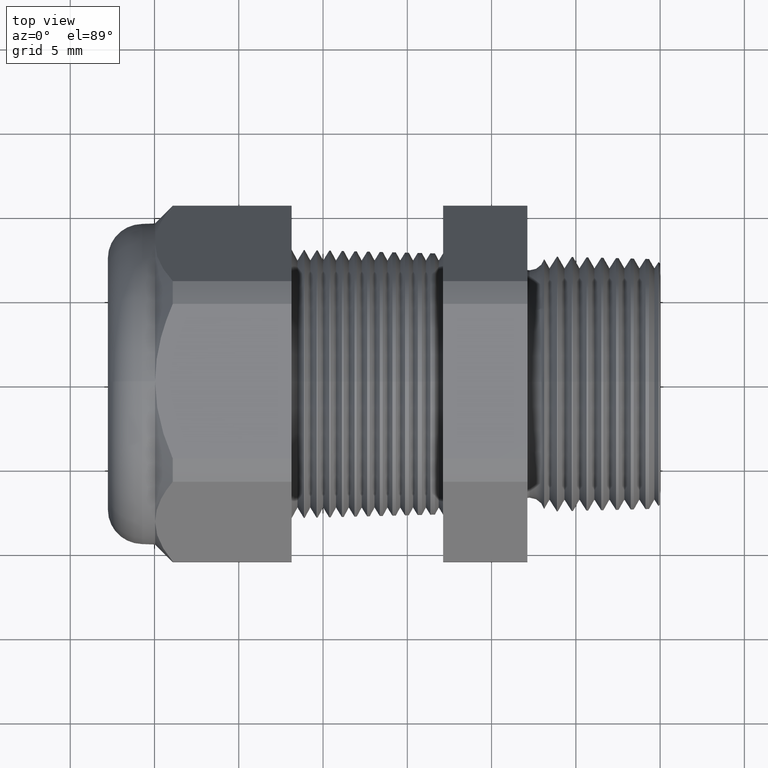
[diagram: clean part render]
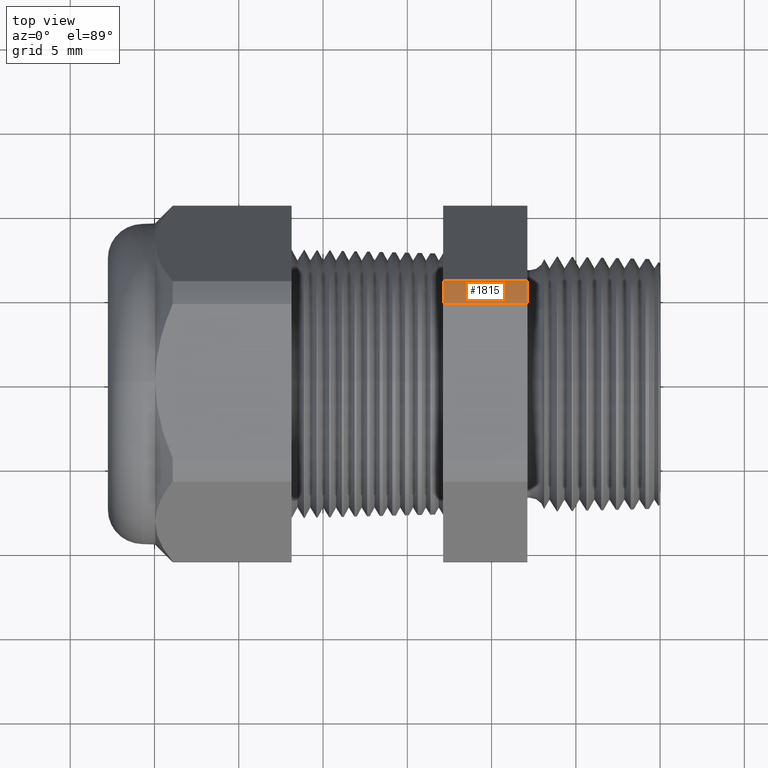
[diagram: same view with one face highlighted and labeled with its STEP entity id]
A machine part, top view. The second image highlights one B-rep face of the part: STEP entity #1815.
In plain terms, the highlighted cylindrical surface (partial cylindrical patch) has radius 10.5727 mm, axis along (-1, 0, 0).
Its self-contained STEP definition (entity closure, byte-faithful):
#1654 = VERTEX_POINT ( 'NONE', #3881 ) ;
#1656 = EDGE_CURVE ( 'NONE', #1654, #1657, #3880, .T. ) ;
#1657 = VERTEX_POINT ( 'NONE', #3875 ) ;
#1815 = ADVANCED_FACE ( 'NONE', ( #4179 ), #4178, .T. ) ;
#1816 = EDGE_LOOP ( 'NONE', ( #1817, #1818, #1819, #1822 ) ) ;
#1817 = ORIENTED_EDGE ( 'NONE', *, *, #1839, .F. ) ;
#1818 = ORIENTED_EDGE ( 'NONE', *, *, #1656, .F. ) ;
#1819 = ORIENTED_EDGE ( 'NONE', *, *, #1820, .T. ) ;
#1820 = EDGE_CURVE ( 'NONE', #1654, #1821, #4177, .T. ) ;
#1821 = VERTEX_POINT ( 'NONE', #4169 ) ;
#1822 = ORIENTED_EDGE ( 'NONE', *, *, #1823, .F. ) ;
#1823 = EDGE_CURVE ( 'NONE', #1840, #1821, #4234, .T. ) ;
#1839 = EDGE_CURVE ( 'NONE', #1657, #1840, #4206, .T. ) ;
#1840 = VERTEX_POINT ( 'NONE', #4202 ) ;
#3875 = CARTESIAN_POINT ( 'NONE',  ( -0.3100000000000000000, 0.1806628420566887000, 0.3749999999999999400 ) ) ;
#3876 = DIRECTION ( 'NONE',  ( 0.0000000000000000000, 0.0000000000000000000, -1.000000000000000000 ) ) ;
#3877 = DIRECTION ( 'NONE',  ( 1.000000000000000000, 0.0000000000000000000, 0.0000000000000000000 ) ) ;
#3878 = CARTESIAN_POINT ( 'NONE',  ( -0.3100000000000000000, 0.0000000000000000000, 0.0000000000000000000 ) ) ;
#3879 = AXIS2_PLACEMENT_3D ( 'NONE', #3878, #3877, #3876 ) ;
#3880 = CIRCLE ( 'NONE', #3879, 0.4162499999999999500 ) ;
#3881 = CARTESIAN_POINT ( 'NONE',  ( -0.3100000000000000000, 0.2344281053908206000, 0.3439586107409877100 ) ) ;
#4169 = CARTESIAN_POINT ( 'NONE',  ( -0.5068503937007874400, 0.2344281053908206000, 0.3439586107409877100 ) ) ;
#4170 = DIRECTION ( 'NONE',  ( -1.000000000000000000, 0.0000000000000000000, 0.0000000000000000000 ) ) ;
#4171 = VECTOR ( 'NONE', #4170, 39.37007874015748100 ) ;
#4172 = CARTESIAN_POINT ( 'NONE',  ( 0.0000000000000000000, 0.2344281053908206000, 0.3439586107409877100 ) ) ;
#4173 = DIRECTION ( 'NONE',  ( 0.0000000000000000000, 0.0000000000000000000, 1.000000000000000000 ) ) ;
#4174 = DIRECTION ( 'NONE',  ( -1.000000000000000000, 0.0000000000000000000, 0.0000000000000000000 ) ) ;
#4175 = CARTESIAN_POINT ( 'NONE',  ( 0.0000000000000000000, 0.0000000000000000000, 0.0000000000000000000 ) ) ;
#4176 = AXIS2_PLACEMENT_3D ( 'NONE', #4175, #4174, #4173 ) ;
#4177 = LINE ( 'NONE', #4172, #4171 ) ;
#4178 = CYLINDRICAL_SURFACE ( 'NONE', #4176, 0.4162499999999999500 ) ;
#4179 = FACE_OUTER_BOUND ( 'NONE', #1816, .T. ) ;
#4202 = CARTESIAN_POINT ( 'NONE',  ( -0.5068503937007874400, 0.1806628420566887000, 0.3749999999999999400 ) ) ;
#4203 = DIRECTION ( 'NONE',  ( -1.000000000000000000, 0.0000000000000000000, 0.0000000000000000000 ) ) ;
#4204 = VECTOR ( 'NONE', #4203, 39.37007874015748100 ) ;
#4205 = CARTESIAN_POINT ( 'NONE',  ( 0.0000000000000000000, 0.1806628420566887000, 0.3749999999999999400 ) ) ;
#4206 = LINE ( 'NONE', #4205, #4204 ) ;
#4230 = DIRECTION ( 'NONE',  ( 0.0000000000000000000, 0.0000000000000000000, 1.000000000000000000 ) ) ;
#4231 = DIRECTION ( 'NONE',  ( -1.000000000000000000, 0.0000000000000000000, 0.0000000000000000000 ) ) ;
#4232 = CARTESIAN_POINT ( 'NONE',  ( -0.5068503937007874400, 0.0000000000000000000, 0.0000000000000000000 ) ) ;
#4233 = AXIS2_PLACEMENT_3D ( 'NONE', #4232, #4231, #4230 ) ;
#4234 = CIRCLE ( 'NONE', #4233, 0.4162499999999999500 ) ;